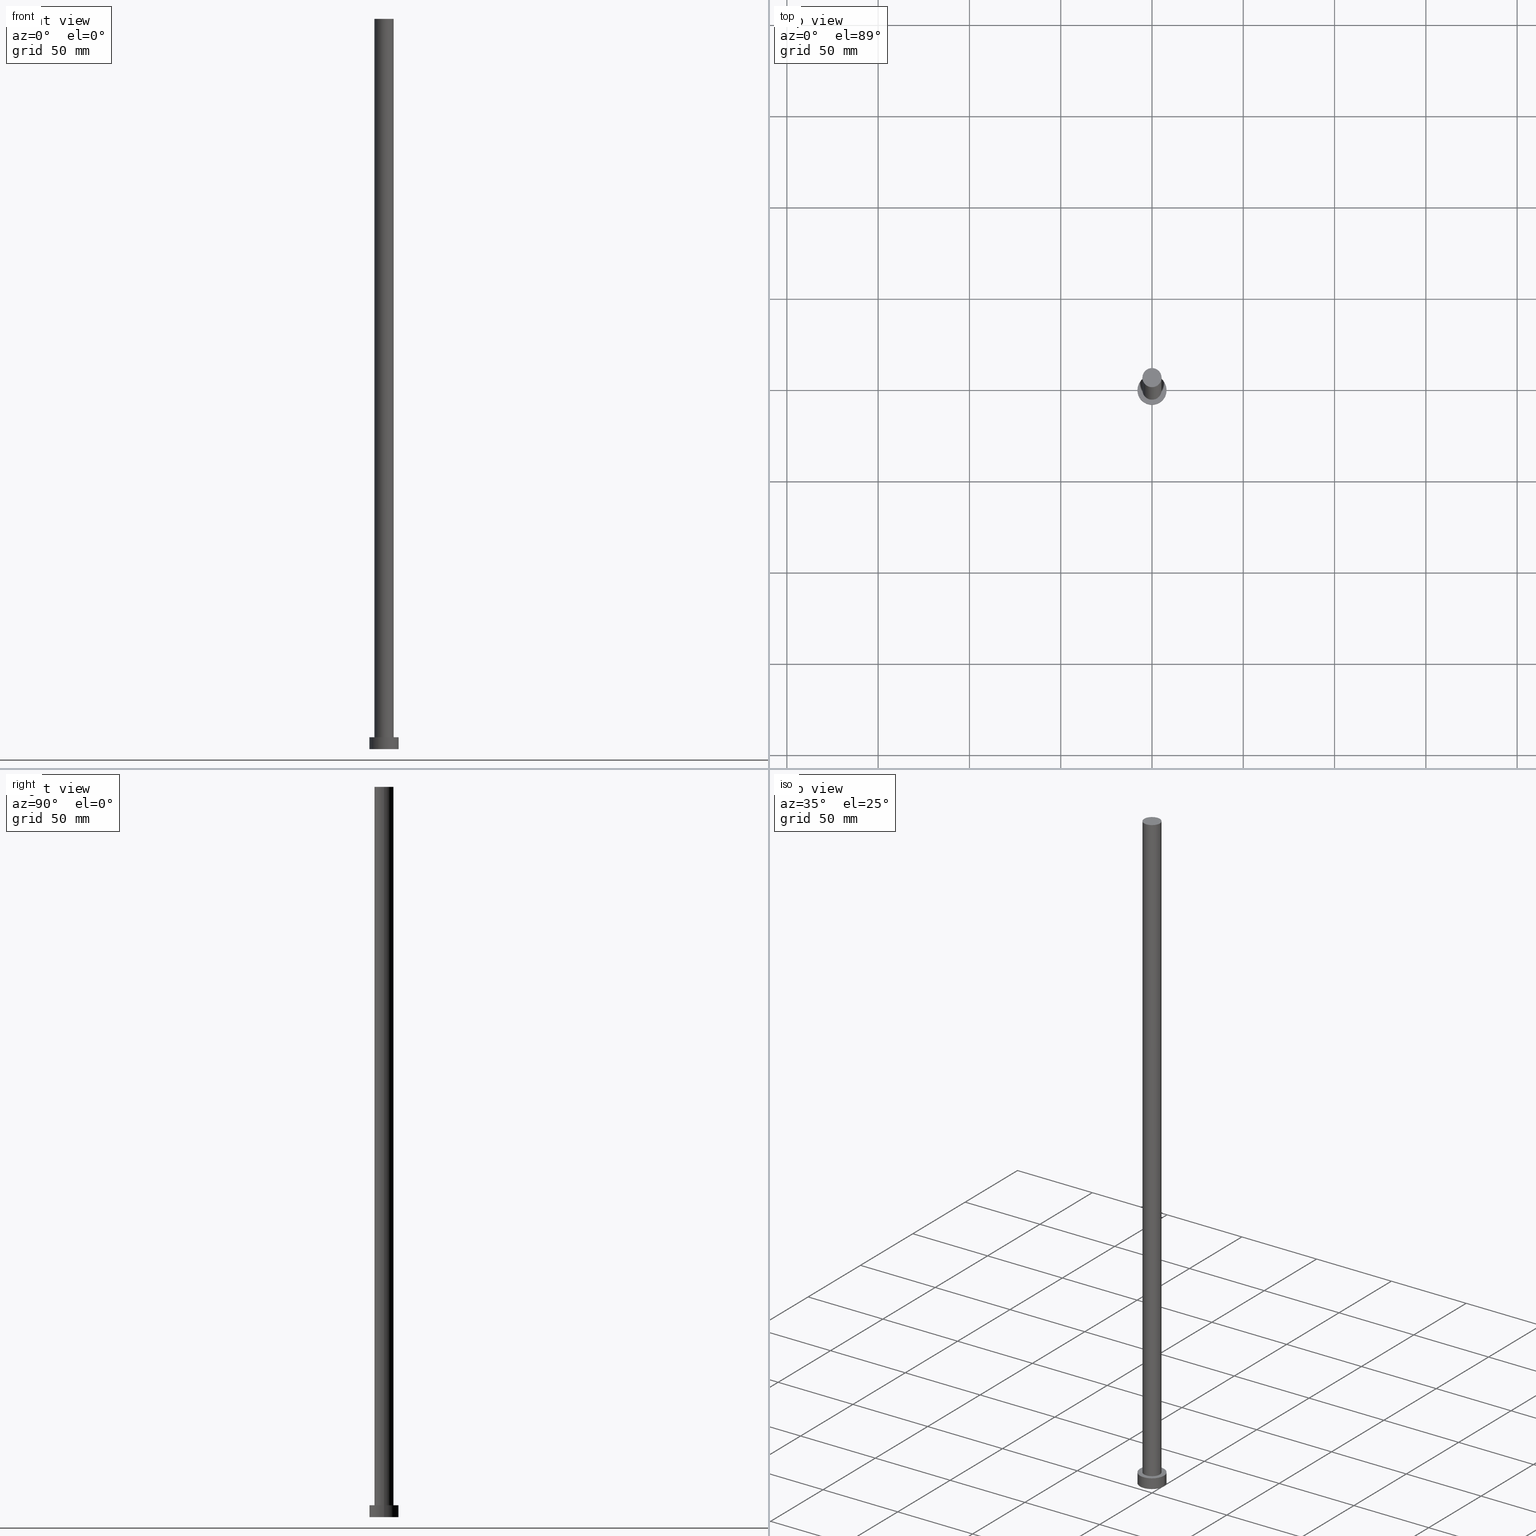
[diagram: canonical four-view strip — front | top / right | iso, engineering-drawing reading convention]
A machine part, canonical four-view strip (front | top / right | iso — engineering-drawing reading convention). The complete STEP part file that produces these views, byte-faithful:
ISO-10303-21;
HEADER;
FILE_DESCRIPTION (( 'STEP AP203' ),
    '1' );
FILE_NAME ('00f3.STEP',
    '2023-02-13T12:21:40',
    ( '' ),
    ( '' ),
    'SwSTEP 2.0',
    'SolidWorks 2019',
    '' );
FILE_SCHEMA (( 'CONFIG_CONTROL_DESIGN' ));
ENDSEC;

DATA;
#1 = PRODUCT ( '00f3', '00f3', '', ( #96 ) ) ;
#2 = PLANE ( 'NONE',  #123 ) ;
#3 = CC_DESIGN_DATE_AND_TIME_ASSIGNMENT ( #187, #61, ( #185 ) ) ;
#4 = FACE_OUTER_BOUND ( 'NONE', #146, .T. ) ;
#5 = PERSON_AND_ORGANIZATION_ROLE ( 'classification_officer' ) ;
#6 = ORIENTED_EDGE ( 'NONE', *, *, #140, .F. ) ;
#7 = ORIENTED_EDGE ( 'NONE', *, *, #125, .T. ) ;
#8 = VERTEX_POINT ( 'NONE', #212 ) ;
#9 = LINE ( 'NONE', #29, #80 ) ;
#10 = DIRECTION ( 'NONE',  ( 1.000000000000000000, 0.000000000000000000, 0.000000000000000000 ) ) ;
#11 = CYLINDRICAL_SURFACE ( 'NONE', #225, 5.250000000000000888 ) ;
#12 = LINE ( 'NONE', #158, #132 ) ;
#13 = DIRECTION ( 'NONE',  ( 0.000000000000000000, 0.000000000000000000, 1.000000000000000000 ) ) ;
#14 = DIRECTION ( 'NONE',  ( -0.000000000000000000, -0.000000000000000000, -1.000000000000000000 ) ) ;
#15 = DATE_TIME_ROLE ( 'creation_date' ) ;
#16 = CC_DESIGN_PERSON_AND_ORGANIZATION_ASSIGNMENT ( #159, #237, ( #1 ) ) ;
#17 = LOCAL_TIME ( 13, 21, 40.00000000000000000, #20 ) ;
#18 = ADVANCED_FACE ( 'NONE', ( #151 ), #60, .T. ) ;
#19 = PERSON_AND_ORGANIZATION ( #66, #194 ) ;
#20 = COORDINATED_UNIVERSAL_TIME_OFFSET ( 1, 0, .AHEAD. ) ;
#21 = EDGE_LOOP ( 'NONE', ( #231, #207, #104, #148 ) ) ;
#22 = APPROVAL_PERSON_ORGANIZATION ( #19, #101, #205 ) ;
#23 = VERTEX_POINT ( 'NONE', #92 ) ;
#24 = EDGE_CURVE ( 'NONE', #186, #150, #74, .T. ) ;
#25 = VERTEX_POINT ( 'NONE', #73 ) ;
#26 = DIRECTION ( 'NONE',  ( 1.000000000000000000, 0.000000000000000000, 0.000000000000000000 ) ) ;
#27 = APPROVAL_PERSON_ORGANIZATION ( #55, #88, #160 ) ;
#28 = CARTESIAN_POINT ( 'NONE',  ( 0.000000000000000000, 0.000000000000000000, 400.0000000000000000 ) ) ;
#29 = CARTESIAN_POINT ( 'NONE',  ( -5.250000000000000888, 0.000000000000000000, 400.0000000000000000 ) ) ;
#30 = CARTESIAN_POINT ( 'NONE',  ( 0.000000000000000000, 0.000000000000000000, 0.000000000000000000 ) ) ;
#31 =( GEOMETRIC_REPRESENTATION_CONTEXT ( 3 ) GLOBAL_UNCERTAINTY_ASSIGNED_CONTEXT ( ( #127 ) ) GLOBAL_UNIT_ASSIGNED_CONTEXT ( ( #83, #57, #117 ) ) REPRESENTATION_CONTEXT ( 'NONE', 'WORKASPACE' ) );
#32 = ORIENTED_EDGE ( 'NONE', *, *, #130, .F. ) ;
#33 = CARTESIAN_POINT ( 'NONE',  ( 0.000000000000000000, 0.000000000000000000, 0.000000000000000000 ) ) ;
#34 = COORDINATED_UNIVERSAL_TIME_OFFSET ( 1, 0, .AHEAD. ) ;
#35 = LOCAL_TIME ( 13, 21, 40.00000000000000000, #56 ) ;
#36 = PERSON_AND_ORGANIZATION ( #66, #194 ) ;
#37 = CC_DESIGN_PERSON_AND_ORGANIZATION_ASSIGNMENT ( #36, #138, ( #178 ) ) ;
#38 = DIRECTION ( 'NONE',  ( 1.000000000000000000, 0.000000000000000000, -0.000000000000000000 ) ) ;
#39 = AXIS2_PLACEMENT_3D ( 'NONE', #249, #136, #72 ) ;
#40 = CARTESIAN_POINT ( 'NONE',  ( 0.000000000000000000, 0.000000000000000000, 0.000000000000000000 ) ) ;
#41 = AXIS2_PLACEMENT_3D ( 'NONE', #33, #79, #38 ) ;
#42 = ADVANCED_BREP_SHAPE_REPRESENTATION ( '00f3', ( #86, #163 ), #31 ) ;
#43 = VECTOR ( 'NONE', #69, 1000.000000000000000 ) ;
#44 = PERSON_AND_ORGANIZATION_ROLE ( 'creator' ) ;
#45 = ORIENTED_EDGE ( 'NONE', *, *, #77, .F. ) ;
#46 = CC_DESIGN_PERSON_AND_ORGANIZATION_ASSIGNMENT ( #102, #126, ( #176 ) ) ;
#47 = SHAPE_DEFINITION_REPRESENTATION ( #76, #42 ) ;
#48 = ORIENTED_EDGE ( 'NONE', *, *, #173, .T. ) ;
#49 = CARTESIAN_POINT ( 'NONE',  ( -8.000000000000000000, 0.000000000000000000, 6.500000000000000000 ) ) ;
#50 = DIRECTION ( 'NONE',  ( -0.000000000000000000, -0.000000000000000000, -1.000000000000000000 ) ) ;
#51 = LOCAL_TIME ( 13, 21, 40.00000000000000000, #245 ) ;
#52 = DIRECTION ( 'NONE',  ( 0.000000000000000000, 0.000000000000000000, 1.000000000000000000 ) ) ;
#53 = CARTESIAN_POINT ( 'NONE',  ( 0.000000000000000000, 0.000000000000000000, 400.0000000000000000 ) ) ;
#54 = CARTESIAN_POINT ( 'NONE',  ( -8.000000000000000000, 0.000000000000000000, 6.500000000000000000 ) ) ;
#55 = PERSON_AND_ORGANIZATION ( #66, #194 ) ;
#56 = COORDINATED_UNIVERSAL_TIME_OFFSET ( 1, 0, .AHEAD. ) ;
#57 =( NAMED_UNIT ( * ) PLANE_ANGLE_UNIT ( ) SI_UNIT ( $, .RADIAN. ) );
#58 = CIRCLE ( 'NONE', #161, 8.000000000000000000 ) ;
#59 = DATE_AND_TIME ( #64, #51 ) ;
#60 = PLANE ( 'NONE',  #120 ) ;
#61 = DATE_TIME_ROLE ( 'classification_date' ) ;
#62 = EDGE_LOOP ( 'NONE', ( #105, #7, #169, #193 ) ) ;
#63 = VERTEX_POINT ( 'NONE', #54 ) ;
#64 = CALENDAR_DATE ( 2023, 13, 2 ) ;
#65 = ORIENTED_EDGE ( 'NONE', *, *, #99, .F. ) ;
#66 = PERSON ( 'NEUR�EN�', 'NEUR�EN�', 'NEUR�EN�', ('NEUR�EN�'), ('NEUR�EN�'), ('NEUR�EN�') ) ;
#67 = ORIENTED_EDGE ( 'NONE', *, *, #147, .T. ) ;
#68 = CC_DESIGN_PERSON_AND_ORGANIZATION_ASSIGNMENT ( #98, #5, ( #185 ) ) ;
#69 = DIRECTION ( 'NONE',  ( -0.000000000000000000, -0.000000000000000000, -1.000000000000000000 ) ) ;
#70 = LOCAL_TIME ( 13, 21, 40.00000000000000000, #34 ) ;
#71 = AXIS2_PLACEMENT_3D ( 'NONE', #28, #107, #10 ) ;
#72 = DIRECTION ( 'NONE',  ( 1.000000000000000000, 0.000000000000000000, 0.000000000000000000 ) ) ;
#73 = CARTESIAN_POINT ( 'NONE',  ( -5.250000000000000888, 0.000000000000000000, 6.500000000000000000 ) ) ;
#74 = CIRCLE ( 'NONE', #170, 5.250000000000000888 ) ;
#75 = LINE ( 'NONE', #49, #108 ) ;
#76 = PRODUCT_DEFINITION_SHAPE ( 'NONE', 'NONE',  #178 ) ;
#77 = EDGE_CURVE ( 'NONE', #23, #230, #227, .T. ) ;
#78 = APPLICATION_PROTOCOL_DEFINITION ( 'international standard', 'config_control_design', 1994, #114 ) ;
#79 = DIRECTION ( 'NONE',  ( 0.000000000000000000, 0.000000000000000000, 1.000000000000000000 ) ) ;
#80 = VECTOR ( 'NONE', #175, 1000.000000000000000 ) ;
#81 = FACE_BOUND ( 'NONE', #220, .T. ) ;
#82 = CC_DESIGN_APPROVAL ( #101, ( #185 ) ) ;
#83 =( LENGTH_UNIT ( ) NAMED_UNIT ( * ) SI_UNIT ( .MILLI., .METRE. ) );
#84 = AXIS2_PLACEMENT_3D ( 'NONE', #196, #13, #154 ) ;
#85 = ORIENTED_EDGE ( 'NONE', *, *, #156, .T. ) ;
#86 = MANIFOLD_SOLID_BREP ( 'P�idat vysunut�m3', #141 ) ;
#87 = ORIENTED_EDGE ( 'NONE', *, *, #77, .T. ) ;
#88 = APPROVAL ( #137, 'NEUR�EN�' ) ;
#89 = CARTESIAN_POINT ( 'NONE',  ( 0.000000000000000000, 0.000000000000000000, 400.0000000000000000 ) ) ;
#90 = FACE_OUTER_BOUND ( 'NONE', #62, .T. ) ;
#91 = DIRECTION ( 'NONE',  ( -1.000000000000000000, 0.000000000000000000, 0.000000000000000000 ) ) ;
#92 = CARTESIAN_POINT ( 'NONE',  ( -8.000000000000000000, 0.000000000000000000, 0.000000000000000000 ) ) ;
#93 = CIRCLE ( 'NONE', #84, 5.250000000000000888 ) ;
#94 = EDGE_LOOP ( 'NONE', ( #131, #248 ) ) ;
#95 = CARTESIAN_POINT ( 'NONE',  ( 0.000000000000000000, 0.000000000000000000, 6.500000000000000000 ) ) ;
#96 = MECHANICAL_CONTEXT ( 'NONE', #144, 'mechanical' ) ;
#97 = APPLICATION_PROTOCOL_DEFINITION ( 'international standard', 'config_control_design', 1994, #144 ) ;
#98 = PERSON_AND_ORGANIZATION ( #66, #194 ) ;
#99 = EDGE_CURVE ( 'NONE', #230, #23, #166, .T. ) ;
#100 = CC_DESIGN_APPROVAL ( #88, ( #178 ) ) ;
#101 = APPROVAL ( #145, 'NEUR�EN�' ) ;
#102 = PERSON_AND_ORGANIZATION ( #66, #194 ) ;
#103 = ADVANCED_FACE ( 'NONE', ( #112 ), #234, .T. ) ;
#104 = ORIENTED_EDGE ( 'NONE', *, *, #140, .T. ) ;
#105 = ORIENTED_EDGE ( 'NONE', *, *, #116, .F. ) ;
#106 = CARTESIAN_POINT ( 'NONE',  ( 5.250000000000000888, 6.429395695523605139E-16, 400.0000000000000000 ) ) ;
#107 = DIRECTION ( 'NONE',  ( 0.000000000000000000, 0.000000000000000000, 1.000000000000000000 ) ) ;
#108 = VECTOR ( 'NONE', #133, 1000.000000000000000 ) ;
#109 = CARTESIAN_POINT ( 'NONE',  ( 0.000000000000000000, 0.000000000000000000, 6.500000000000000000 ) ) ;
#110 = DIRECTION ( 'NONE',  ( 1.000000000000000000, 0.000000000000000000, -0.000000000000000000 ) ) ;
#111 = CIRCLE ( 'NONE', #71, 5.250000000000000888 ) ;
#112 = FACE_OUTER_BOUND ( 'NONE', #21, .T. ) ;
#113 = CYLINDRICAL_SURFACE ( 'NONE', #143, 8.000000000000000000 ) ;
#114 = APPLICATION_CONTEXT ( 'configuration controlled 3d designs of mechanical parts and assemblies' ) ;
#115 = CALENDAR_DATE ( 2023, 13, 2 ) ;
#116 = EDGE_CURVE ( 'NONE', #188, #63, #58, .T. ) ;
#117 =( NAMED_UNIT ( * ) SI_UNIT ( $, .STERADIAN. ) SOLID_ANGLE_UNIT ( ) );
#118 = CC_DESIGN_DATE_AND_TIME_ASSIGNMENT ( #198, #15, ( #178 ) ) ;
#119 = FACE_OUTER_BOUND ( 'NONE', #244, .T. ) ;
#120 = AXIS2_PLACEMENT_3D ( 'NONE', #89, #52, #110 ) ;
#121 = PRODUCT_RELATED_PRODUCT_CATEGORY ( 'detail', '', ( #1 ) ) ;
#122 = PLANE ( 'NONE',  #41 ) ;
#123 = AXIS2_PLACEMENT_3D ( 'NONE', #95, #164, #162 ) ;
#124 = COORDINATED_UNIVERSAL_TIME_OFFSET ( 1, 0, .AHEAD. ) ;
#125 = EDGE_CURVE ( 'NONE', #188, #230, #12, .T. ) ;
#126 = PERSON_AND_ORGANIZATION_ROLE ( 'design_supplier' ) ;
#127 = UNCERTAINTY_MEASURE_WITH_UNIT (LENGTH_MEASURE( 1.000000000000000082E-05 ), #83, 'distance_accuracy_value', 'NONE');
#128 = AXIS2_PLACEMENT_3D ( 'NONE', #232, #216, #135 ) ;
#129 = CALENDAR_DATE ( 2023, 13, 2 ) ;
#130 = EDGE_CURVE ( 'NONE', #186, #8, #213, .T. ) ;
#131 = ORIENTED_EDGE ( 'NONE', *, *, #223, .T. ) ;
#132 = VECTOR ( 'NONE', #191, 1000.000000000000000 ) ;
#133 = DIRECTION ( 'NONE',  ( -0.000000000000000000, -0.000000000000000000, -1.000000000000000000 ) ) ;
#134 = DIRECTION ( 'NONE',  ( 1.000000000000000000, 0.000000000000000000, 0.000000000000000000 ) ) ;
#135 = DIRECTION ( 'NONE',  ( -1.000000000000000000, 0.000000000000000000, 0.000000000000000000 ) ) ;
#136 = DIRECTION ( 'NONE',  ( 0.000000000000000000, 0.000000000000000000, 1.000000000000000000 ) ) ;
#137 = APPROVAL_STATUS ( 'not_yet_approved' ) ;
#138 = PERSON_AND_ORGANIZATION_ROLE ( 'creator' ) ;
#139 = LOCAL_TIME ( 13, 21, 40.00000000000000000, #124 ) ;
#140 = EDGE_CURVE ( 'NONE', #8, #25, #93, .T. ) ;
#141 = CLOSED_SHELL ( 'NONE', ( #103, #211, #253, #226, #250, #189, #18 ) ) ;
#142 = PERSON_AND_ORGANIZATION ( #66, #194 ) ;
#143 = AXIS2_PLACEMENT_3D ( 'NONE', #240, #201, #255 ) ;
#144 = APPLICATION_CONTEXT ( 'configuration controlled 3d designs of mechanical parts and assemblies' ) ;
#145 = APPROVAL_STATUS ( 'not_yet_approved' ) ;
#146 = EDGE_LOOP ( 'NONE', ( #45, #65 ) ) ;
#147 = EDGE_CURVE ( 'NONE', #150, #25, #9, .T. ) ;
#148 = ORIENTED_EDGE ( 'NONE', *, *, #147, .F. ) ;
#149 = CALENDAR_DATE ( 2023, 13, 2 ) ;
#150 = VERTEX_POINT ( 'NONE', #252 ) ;
#151 = FACE_OUTER_BOUND ( 'NONE', #242, .T. ) ;
#152 = FACE_OUTER_BOUND ( 'NONE', #206, .T. ) ;
#153 = CIRCLE ( 'NONE', #218, 8.000000000000000000 ) ;
#154 = DIRECTION ( 'NONE',  ( 1.000000000000000000, 0.000000000000000000, 0.000000000000000000 ) ) ;
#155 = CARTESIAN_POINT ( 'NONE',  ( 0.000000000000000000, 0.000000000000000000, 6.500000000000000000 ) ) ;
#156 = EDGE_CURVE ( 'NONE', #25, #8, #229, .T. ) ;
#157 = AXIS2_PLACEMENT_3D ( 'NONE', #30, #219, #26 ) ;
#158 = CARTESIAN_POINT ( 'NONE',  ( 8.000000000000000000, 9.797174393178823685E-16, 6.500000000000000000 ) ) ;
#159 = PERSON_AND_ORGANIZATION ( #66, #194 ) ;
#160 = APPROVAL_ROLE ( '' ) ;
#161 = AXIS2_PLACEMENT_3D ( 'NONE', #190, #235, #195 ) ;
#162 = DIRECTION ( 'NONE',  ( 1.000000000000000000, 0.000000000000000000, -0.000000000000000000 ) ) ;
#163 = AXIS2_PLACEMENT_3D ( 'NONE', #40, #254, #202 ) ;
#164 = DIRECTION ( 'NONE',  ( 0.000000000000000000, 0.000000000000000000, 1.000000000000000000 ) ) ;
#165 = APPROVAL_ROLE ( '' ) ;
#166 = CIRCLE ( 'NONE', #39, 8.000000000000000000 ) ;
#167 = APPROVAL_DATE_TIME ( #181, #101 ) ;
#168 = ORIENTED_EDGE ( 'NONE', *, *, #156, .F. ) ;
#169 = ORIENTED_EDGE ( 'NONE', *, *, #99, .T. ) ;
#170 = AXIS2_PLACEMENT_3D ( 'NONE', #53, #251, #134 ) ;
#171 = CYLINDRICAL_SURFACE ( 'NONE', #208, 8.000000000000000000 ) ;
#172 = CC_DESIGN_SECURITY_CLASSIFICATION ( #185, ( #176 ) ) ;
#173 = EDGE_CURVE ( 'NONE', #63, #23, #75, .T. ) ;
#174 = CARTESIAN_POINT ( 'NONE',  ( 5.250000000000000888, 6.429395695523605139E-16, 400.0000000000000000 ) ) ;
#175 = DIRECTION ( 'NONE',  ( -0.000000000000000000, -0.000000000000000000, -1.000000000000000000 ) ) ;
#176 = PRODUCT_DEFINITION_FORMATION_WITH_SPECIFIED_SOURCE ( 'LIBOVOLN�', '', #1, .NOT_KNOWN. ) ;
#177 = PERSON_AND_ORGANIZATION ( #66, #194 ) ;
#178 = PRODUCT_DEFINITION ( 'NEZN�M�', '', #176, #184 ) ;
#179 = APPROVAL_STATUS ( 'not_yet_approved' ) ;
#180 = FACE_OUTER_BOUND ( 'NONE', #94, .T. ) ;
#181 = DATE_AND_TIME ( #129, #17 ) ;
#182 = ORIENTED_EDGE ( 'NONE', *, *, #209, .T. ) ;
#183 = ORIENTED_EDGE ( 'NONE', *, *, #209, .F. ) ;
#184 = DESIGN_CONTEXT ( 'detailed design', #114, 'design' ) ;
#185 = SECURITY_CLASSIFICATION ( '', '', #247 ) ;
#186 = VERTEX_POINT ( 'NONE', #106 ) ;
#187 = DATE_AND_TIME ( #149, #139 ) ;
#188 = VERTEX_POINT ( 'NONE', #217 ) ;
#189 = ADVANCED_FACE ( 'NONE', ( #152 ), #11, .T. ) ;
#190 = CARTESIAN_POINT ( 'NONE',  ( 0.000000000000000000, 0.000000000000000000, 6.500000000000000000 ) ) ;
#191 = DIRECTION ( 'NONE',  ( -0.000000000000000000, -0.000000000000000000, -1.000000000000000000 ) ) ;
#192 = DIRECTION ( 'NONE',  ( 1.000000000000000000, 0.000000000000000000, 0.000000000000000000 ) ) ;
#193 = ORIENTED_EDGE ( 'NONE', *, *, #173, .F. ) ;
#194 = ORGANIZATION ( 'NEUR�EN�', 'NEUR�EN�', '' ) ;
#195 = DIRECTION ( 'NONE',  ( 1.000000000000000000, 0.000000000000000000, 0.000000000000000000 ) ) ;
#196 = CARTESIAN_POINT ( 'NONE',  ( 0.000000000000000000, 0.000000000000000000, 6.500000000000000000 ) ) ;
#197 = CARTESIAN_POINT ( 'NONE',  ( 8.000000000000000000, 9.797174393178823685E-16, 0.000000000000000000 ) ) ;
#198 = DATE_AND_TIME ( #115, #70 ) ;
#199 = CC_DESIGN_APPROVAL ( #203, ( #176 ) ) ;
#200 = DIRECTION ( 'NONE',  ( 1.000000000000000000, 0.000000000000000000, 0.000000000000000000 ) ) ;
#201 = DIRECTION ( 'NONE',  ( -0.000000000000000000, -0.000000000000000000, -1.000000000000000000 ) ) ;
#202 = DIRECTION ( 'NONE',  ( 1.000000000000000000, 0.000000000000000000, 0.000000000000000000 ) ) ;
#203 = APPROVAL ( #179, 'NEUR�EN�' ) ;
#204 = ORIENTED_EDGE ( 'NONE', *, *, #223, .F. ) ;
#205 = APPROVAL_ROLE ( '' ) ;
#206 = EDGE_LOOP ( 'NONE', ( #32, #183, #67, #85 ) ) ;
#207 = ORIENTED_EDGE ( 'NONE', *, *, #130, .T. ) ;
#208 = AXIS2_PLACEMENT_3D ( 'NONE', #155, #14, #228 ) ;
#209 = EDGE_CURVE ( 'NONE', #150, #186, #111, .T. ) ;
#210 = ORIENTED_EDGE ( 'NONE', *, *, #24, .T. ) ;
#211 = ADVANCED_FACE ( 'NONE', ( #90 ), #171, .T. ) ;
#212 = CARTESIAN_POINT ( 'NONE',  ( 5.250000000000000888, 6.429395695523605139E-16, 6.500000000000000000 ) ) ;
#213 = LINE ( 'NONE', #174, #43 ) ;
#214 = CC_DESIGN_PERSON_AND_ORGANIZATION_ASSIGNMENT ( #142, #44, ( #176 ) ) ;
#215 = DIRECTION ( 'NONE',  ( 0.000000000000000000, 0.000000000000000000, 1.000000000000000000 ) ) ;
#216 = DIRECTION ( 'NONE',  ( -0.000000000000000000, -0.000000000000000000, -1.000000000000000000 ) ) ;
#217 = CARTESIAN_POINT ( 'NONE',  ( 8.000000000000000000, 9.797174393178823685E-16, 6.500000000000000000 ) ) ;
#218 = AXIS2_PLACEMENT_3D ( 'NONE', #221, #239, #200 ) ;
#219 = DIRECTION ( 'NONE',  ( 0.000000000000000000, 0.000000000000000000, 1.000000000000000000 ) ) ;
#220 = EDGE_LOOP ( 'NONE', ( #168, #6 ) ) ;
#221 = CARTESIAN_POINT ( 'NONE',  ( 0.000000000000000000, 0.000000000000000000, 6.500000000000000000 ) ) ;
#222 = DATE_AND_TIME ( #224, #35 ) ;
#223 = EDGE_CURVE ( 'NONE', #63, #188, #153, .T. ) ;
#224 = CALENDAR_DATE ( 2023, 13, 2 ) ;
#225 = AXIS2_PLACEMENT_3D ( 'NONE', #233, #50, #91 ) ;
#226 = ADVANCED_FACE ( 'NONE', ( #81, #180 ), #2, .T. ) ;
#227 = CIRCLE ( 'NONE', #157, 8.000000000000000000 ) ;
#228 = DIRECTION ( 'NONE',  ( -1.000000000000000000, 0.000000000000000000, 0.000000000000000000 ) ) ;
#229 = CIRCLE ( 'NONE', #241, 5.250000000000000888 ) ;
#230 = VERTEX_POINT ( 'NONE', #197 ) ;
#231 = ORIENTED_EDGE ( 'NONE', *, *, #24, .F. ) ;
#232 = CARTESIAN_POINT ( 'NONE',  ( 0.000000000000000000, 0.000000000000000000, 400.0000000000000000 ) ) ;
#233 = CARTESIAN_POINT ( 'NONE',  ( 0.000000000000000000, 0.000000000000000000, 400.0000000000000000 ) ) ;
#234 = CYLINDRICAL_SURFACE ( 'NONE', #128, 5.250000000000000888 ) ;
#235 = DIRECTION ( 'NONE',  ( 0.000000000000000000, 0.000000000000000000, 1.000000000000000000 ) ) ;
#236 = APPROVAL_PERSON_ORGANIZATION ( #177, #203, #165 ) ;
#237 = PERSON_AND_ORGANIZATION_ROLE ( 'design_owner' ) ;
#238 = APPROVAL_DATE_TIME ( #222, #88 ) ;
#239 = DIRECTION ( 'NONE',  ( 0.000000000000000000, 0.000000000000000000, 1.000000000000000000 ) ) ;
#240 = CARTESIAN_POINT ( 'NONE',  ( 0.000000000000000000, 0.000000000000000000, 6.500000000000000000 ) ) ;
#241 = AXIS2_PLACEMENT_3D ( 'NONE', #109, #215, #192 ) ;
#242 = EDGE_LOOP ( 'NONE', ( #182, #210 ) ) ;
#243 = APPROVAL_DATE_TIME ( #59, #203 ) ;
#244 = EDGE_LOOP ( 'NONE', ( #246, #204, #48, #87 ) ) ;
#245 = COORDINATED_UNIVERSAL_TIME_OFFSET ( 1, 0, .AHEAD. ) ;
#246 = ORIENTED_EDGE ( 'NONE', *, *, #125, .F. ) ;
#247 = SECURITY_CLASSIFICATION_LEVEL ( 'unclassified' ) ;
#248 = ORIENTED_EDGE ( 'NONE', *, *, #116, .T. ) ;
#249 = CARTESIAN_POINT ( 'NONE',  ( 0.000000000000000000, 0.000000000000000000, 0.000000000000000000 ) ) ;
#250 = ADVANCED_FACE ( 'NONE', ( #4 ), #122, .F. ) ;
#251 = DIRECTION ( 'NONE',  ( 0.000000000000000000, 0.000000000000000000, 1.000000000000000000 ) ) ;
#252 = CARTESIAN_POINT ( 'NONE',  ( -5.250000000000000888, 0.000000000000000000, 400.0000000000000000 ) ) ;
#253 = ADVANCED_FACE ( 'NONE', ( #119 ), #113, .T. ) ;
#254 = DIRECTION ( 'NONE',  ( 0.000000000000000000, 0.000000000000000000, 1.000000000000000000 ) ) ;
#255 = DIRECTION ( 'NONE',  ( -1.000000000000000000, 0.000000000000000000, 0.000000000000000000 ) ) ;
ENDSEC;
END-ISO-10303-21;
